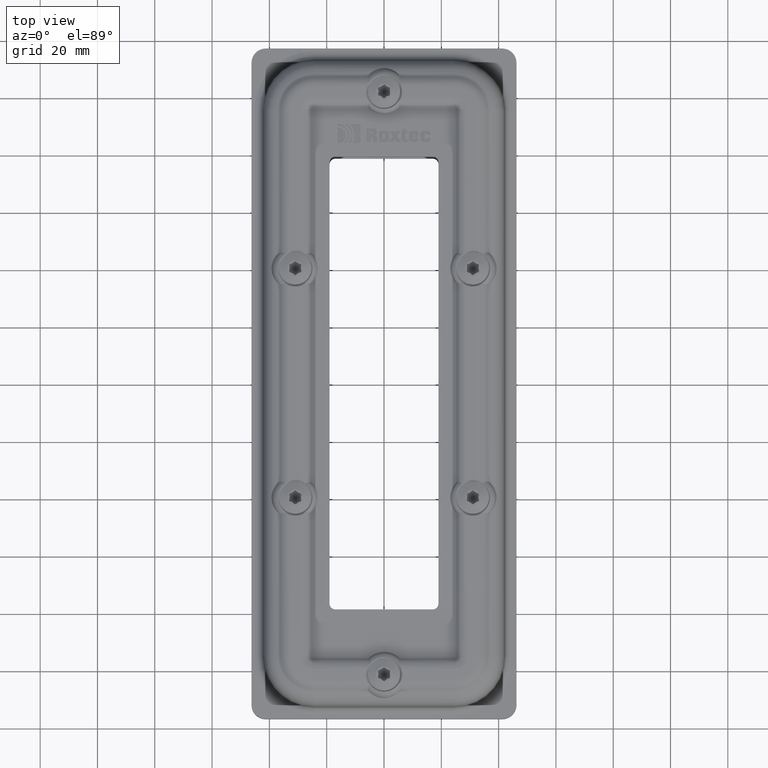
[diagram: clean part render]
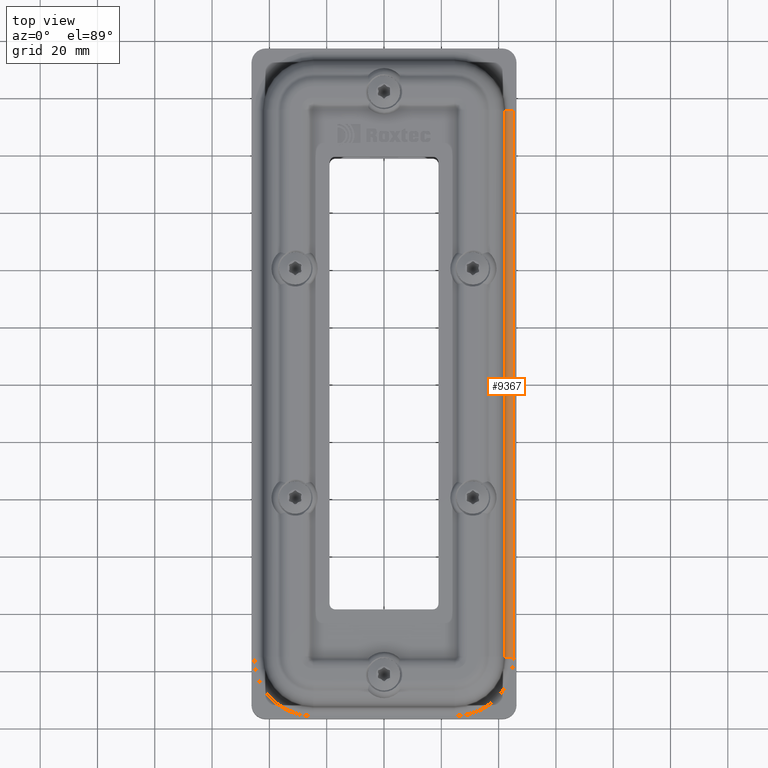
[diagram: same view with one face highlighted and labeled with its STEP entity id]
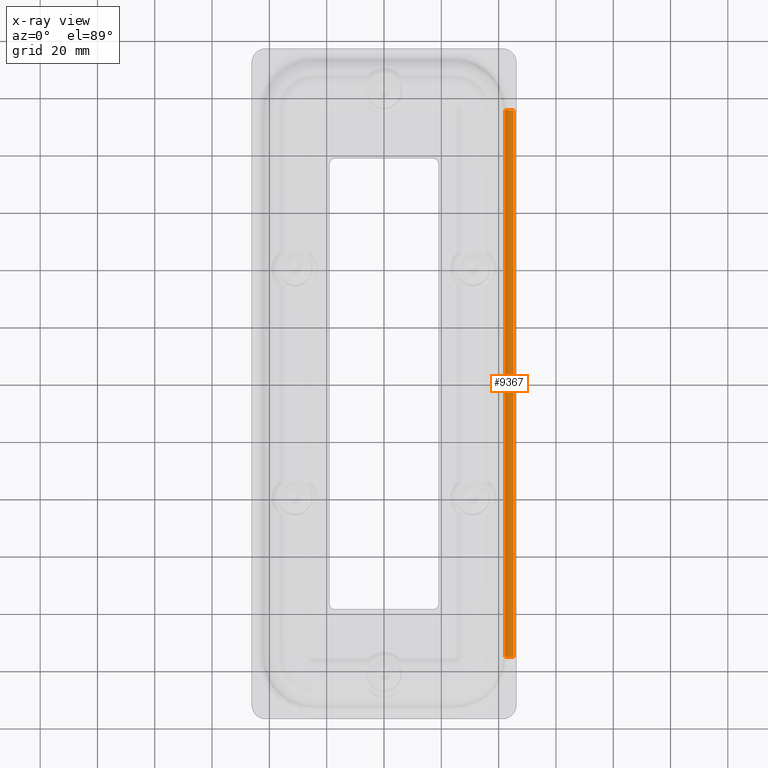
[diagram: x-ray of the same camera — body ghosted, the highlighted face saturated]
A machine part, top view. The second image highlights one B-rep face of the part: STEP entity #9367.
The next image is the same camera in x-ray: the body ghosted, the highlighted face saturated — about 0% of this face is hidden behind the body in this view.
In plain terms, the highlighted cylindrical surface (edge-blend (fillet) strip) has radius 3 mm, axis along (0, 1, 0).
Its self-contained STEP definition (entity closure, byte-faithful):
#772=FACE_OUTER_BOUND('',#1356,.T.);
#1356=EDGE_LOOP('',(#7830,#7831,#7832,#7833));
#2374=LINE('',#16950,#3030);
#2378=LINE('',#16966,#3034);
#3030=VECTOR('',#12148,19.083);
#3034=VECTOR('',#12162,19.083);
#3458=CIRCLE('',#10154,0.300000000000006);
#3459=CIRCLE('',#10155,0.3);
#4312=VERTEX_POINT('',#16946);
#4314=VERTEX_POINT('',#16949);
#4320=VERTEX_POINT('',#16963);
#4321=VERTEX_POINT('',#16965);
#5548=EDGE_CURVE('',#4314,#4312,#2374,.T.);
#5555=EDGE_CURVE('',#4312,#4320,#3458,.T.);
#5556=EDGE_CURVE('',#4321,#4320,#2378,.F.);
#5557=EDGE_CURVE('',#4314,#4321,#3459,.F.);
#7830=ORIENTED_EDGE('',*,*,#5555,.T.);
#7831=ORIENTED_EDGE('',*,*,#5556,.F.);
#7832=ORIENTED_EDGE('',*,*,#5557,.F.);
#7833=ORIENTED_EDGE('',*,*,#5548,.T.);
#8933=CYLINDRICAL_SURFACE('',#10153,0.300000000000006);
#9367=ADVANCED_FACE('',(#772),#8933,.F.);
#10153=AXIS2_PLACEMENT_3D('',#16962,#12158,#12159);
#10154=AXIS2_PLACEMENT_3D('',#16964,#12160,#12161);
#10155=AXIS2_PLACEMENT_3D('',#16967,#12163,#12164);
#12148=DIRECTION('',(3.3306690738755E-16,1.,4.69422931792557E-16));
#12158=DIRECTION('center_axis',(3.3306690738755E-16,1.,4.69422931792557E-16));
#12159=DIRECTION('ref_axis',(-1.,3.3306690738755E-16,7.95081593156021E-17));
#12160=DIRECTION('center_axis',(3.3306690738755E-16,1.,4.69422931792557E-16));
#12161=DIRECTION('ref_axis',(7.95081593156021E-17,-4.69422931792557E-16,
1.));
#12162=DIRECTION('',(-3.3306690738755E-16,-1.,-4.69422931792557E-16));
#12163=DIRECTION('center_axis',(-3.3306690738755E-16,-1.,-4.69422931792557E-16));
#12164=DIRECTION('ref_axis',(-1.,3.3306690738755E-16,7.95081593156037E-17));
#16946=CARTESIAN_POINT('',(4.525,9.5415,-0.799999999999954));
#16949=CARTESIAN_POINT('',(4.525,-9.5415,-0.800000000000003));
#16950=CARTESIAN_POINT('',(4.525,-9.5415,-0.800000000000003));
#16962=CARTESIAN_POINT('Origin',(4.525,-10.49565,-0.500000000000035));
#16963=CARTESIAN_POINT('',(4.22616330572917,9.5415,-0.52639375223951));
#16964=CARTESIAN_POINT('Origin',(4.525,9.5415,-0.499999999999944));
#16965=CARTESIAN_POINT('',(4.22616330572918,-9.5415,-0.526393752239568));
#16966=CARTESIAN_POINT('',(4.22616330572917,9.5415,-0.52639375223951));
#16967=CARTESIAN_POINT('Origin',(4.525,-9.5415,-0.500000000000003));